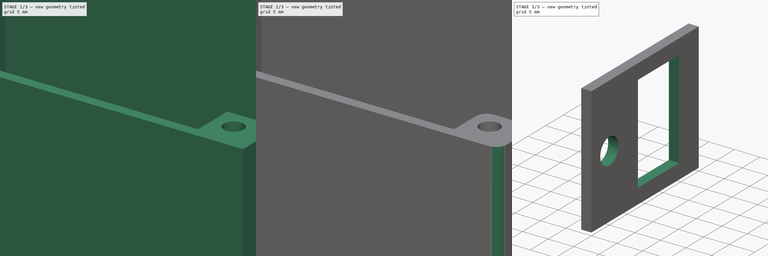
[diagram: build sequence overview — one tinted view per stage of 3, left to right]
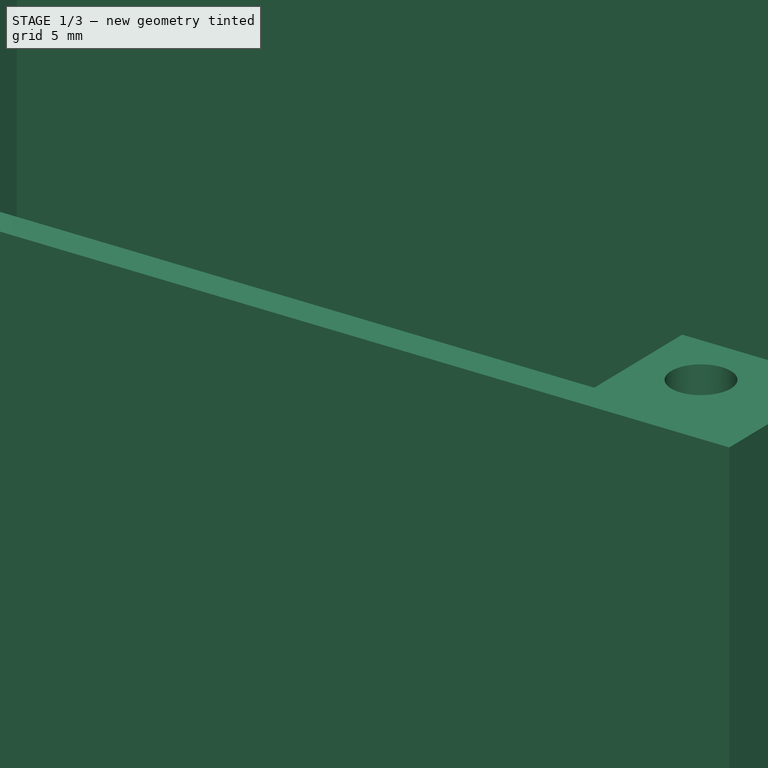
[diagram: stage 1 of 3 — iso view after this stage's code; geometry added in this stage tinted green]
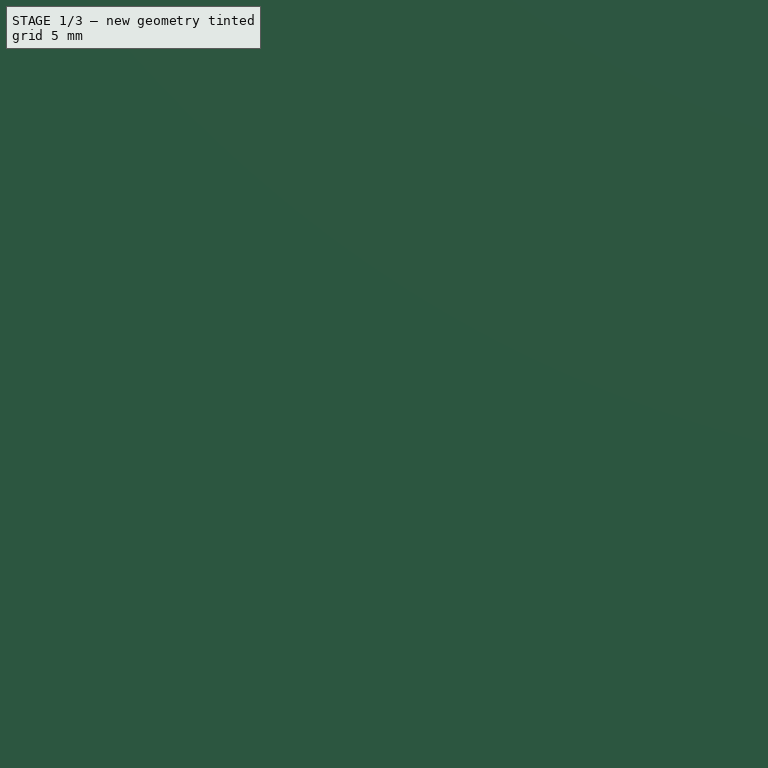
[diagram: stage 1 of 3 — front view after this stage's code; geometry added in this stage tinted green]
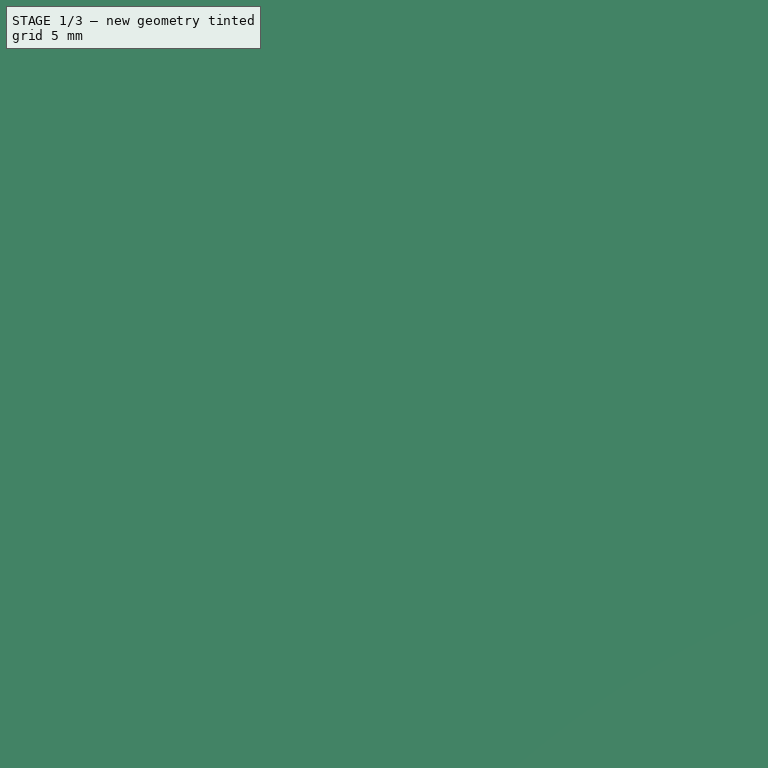
[diagram: stage 1 of 3 — top view after this stage's code; geometry added in this stage tinted green]
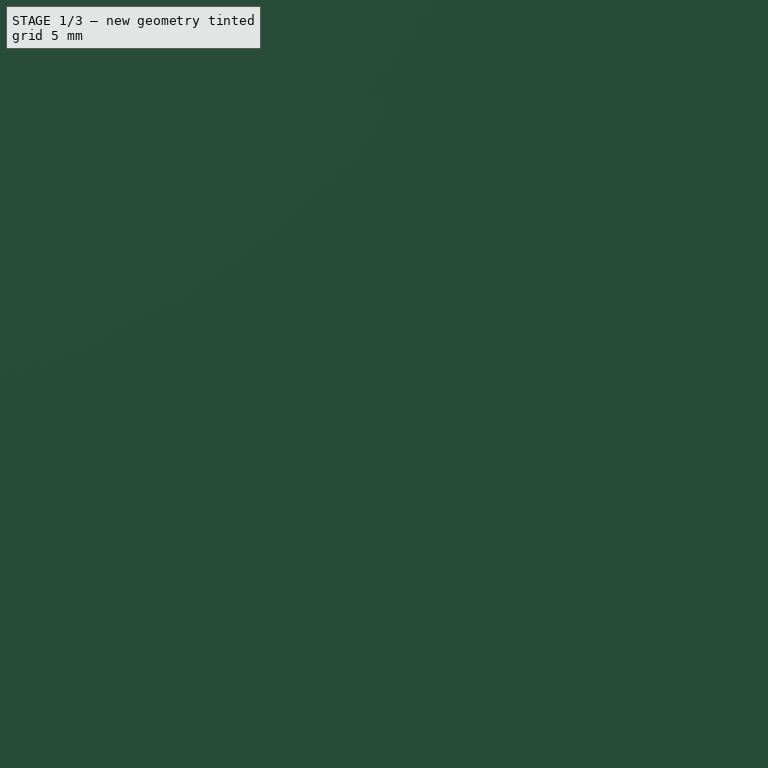
[diagram: stage 1 of 3 — right view after this stage's code; geometry added in this stage tinted green]
FCSTD DOCUMENT  (FreeCAD 0.18R16146 (Git))
Label: virtual_wall_fc-tests
License: All rights reserved
LicenseURL: http://en.wikipedia.org/wiki/All_rights_reserved
objects: Sketcher::SketchObject×4, PartDesign::Pocket×3, PartDesign::Fillet×2, PartDesign::Pad×1, PartDesign::Body×1, Part::Box×1, Part::MultiCommon×1
note: 17 computed .brp shape members not serialized (recipe doc carries the construction recipe); baked Part::Feature solids carry a one-line shape summary decoded from their .brp

FEATURE [Sketcher::SketchObject] Sketch
  MapMode = 5
  Support = -> [XY_Plane]
  sketch-geometry (4):
    g0: LineSegment StartX=0 StartY=0 StartZ=0 EndX=110 EndY=0 EndZ=0
    g1: LineSegment StartX=110 StartY=0 StartZ=0 EndX=110 EndY=80 EndZ=0
    g2: LineSegment StartX=110 StartY=80 StartZ=0 EndX=0 EndY=80 EndZ=0
    g3: LineSegment StartX=0 StartY=80 StartZ=0 EndX=0 EndY=0 EndZ=0
  constraints (11):
    c: Coincident(g0,g1)
    c: Coincident(g1,g2)
    c: Coincident(g2,g3)
    c: Coincident(g3,g0)
    c: Horizontal(g0)
    c: Horizontal(g2)
    c: Vertical(g1)
    c: Vertical(g3)
    c: Coincident(g0,g-1)
    c: DistanceX(g2,g2) = 110
    c: DistanceY(g1,g1) = 80
FEATURE [PartDesign::Pad] Pad
  Length = 50
  Length2 = 100
  Profile = -> Sketch
  Type = 0
FEATURE [Sketcher::SketchObject] Sketch001
  MapMode = 5
  Placement = pos=(0,0,50) rot=(0,0,1;0rad)
  Support = -> [Pad]
  sketch-geometry (17):
    g0: LineSegment StartX=2 StartY=10 StartZ=0 EndX=10 EndY=10 EndZ=0
    g1: LineSegment StartX=10 StartY=10 StartZ=0 EndX=10 EndY=2 EndZ=0
    g2: LineSegment StartX=10 StartY=2 StartZ=0 EndX=100 EndY=2 EndZ=0
    g3: LineSegment StartX=100 StartY=2 StartZ=0 EndX=100 EndY=10 EndZ=0
    g4: LineSegment StartX=100 StartY=10 StartZ=0 EndX=108 EndY=10 EndZ=0
    g5: LineSegment StartX=108 StartY=10 StartZ=0 EndX=108 EndY=70 EndZ=0
    g6: LineSegment StartX=108 StartY=70 StartZ=0 EndX=100 EndY=70 EndZ=0
    g7: LineSegment StartX=100 StartY=70 StartZ=0 EndX=100 EndY=78 EndZ=0
    g8: LineSegment StartX=100 StartY=78 StartZ=0 EndX=10 EndY=78 EndZ=0
    g9: LineSegment StartX=10 StartY=78 StartZ=0 EndX=10 EndY=70 EndZ=0
    g10: LineSegment StartX=10 StartY=70 StartZ=0 EndX=2 EndY=70 EndZ=0
    g11: LineSegment StartX=2 StartY=70 StartZ=0 EndX=2 EndY=10 EndZ=0
    g12: GeomPoint X=0 Y=0 Z=0
    g13: Circle CenterX=6 CenterY=74 CenterZ=0 NormalX=0 NormalY=0 NormalZ=1 AngleXU=0 Radius=1.9
    g14: Circle CenterX=104 CenterY=74 CenterZ=0 NormalX=0 NormalY=0 NormalZ=1 AngleXU=0 Radius=1.9
    g15: Circle CenterX=104 CenterY=6 CenterZ=0 NormalX=0 NormalY=0 NormalZ=1 AngleXU=0 Radius=1.9
    g16: Circle CenterX=6 CenterY=6 CenterZ=0 NormalX=0 NormalY=0 NormalZ=1 AngleXU=0 Radius=1.9
  constraints (49):
    c: Horizontal(g0)
    c: Coincident(g0,g1)
    c: Vertical(g1)
    c: Coincident(g1,g2)
    c: Horizontal(g2)
    c: Coincident(g2,g3)
    c: Coincident(g3,g4)
    c: Horizontal(g4)
    c: Coincident(g4,g5)
    c: Vertical(g5)
    c: Coincident(g5,g6)
    c: Horizontal(g6)
    c: Coincident(g6,g7)
    c: Coincident(g7,g8)
    c: Horizontal(g8)
    c: Coincident(g8,g9)
    c: Coincident(g9,g10)
    c: Coincident(g10,g11)
    c: Coincident(g11,g0)
    c: Vertical(g11)
    c: Vertical(g9)
    c: Vertical(g7)
    c: Vertical(g3)
    c: Horizontal(g10)
    c: DistanceX(g-1,g0) = 2
    c: DistanceY(g-1,g1) = 2
    c: DistanceX(g0,g0) = 8
    c: DistanceY(g1,g1) = 8
    c: DistanceX(g10,g10) = 8
    c: DistanceY(g9,g9) = 8
    c: Coincident(g12,g-1)
    c: DistanceY(g11,g11) = 60
    c: DistanceX(g8,g7) = 90
    c: DistanceY(g7,g7) = 8
    c: DistanceX(g6,g6) = 8
    c: DistanceY(g5,g5) = 60
    c: DistanceX(g4,g4) = 8
    c: DistanceX(g13,g8) = 4
    c: DistanceY(g9,g13) = 4
    c: Radius(g13) = 1.9
    c: DistanceX(g6,g14) = 4
    c: DistanceY(g6,g14) = 4
    c: Radius(g14) = 1.9
    c: DistanceX(g15,g4) = 4
    c: DistanceY(g2,g15) = 4
    c: Radius(g15) = 1.9
    c: DistanceX(g16,g1) = 4
    c: DistanceY(g16,g0) = 4
    c: Radius(g16) = 1.9
FEATURE [PartDesign::Pocket] Pocket
  BaseFeature = -> Pad
  Length = 48
  Length2 = 100
  Profile = -> Sketch001
  Type = 0
FEATURE [PartDesign::Body] Body
  Group = -> [Sketch,Pad,Sketch001,Pocket,Fillet,Fillet001,Sketch002,Pocket001,Sketch003,Pocket002]
  Origin = -> Origin
  Tip = -> Pocket002
FEATURE [Part::Box] Box  label="Cube"
  AttacherType = Attacher::AttachEngine3D
  Height = 25
  Length = 20
  Placement = pos=(100,10,15) rot=(0,0,1;0rad)
  Width = 30
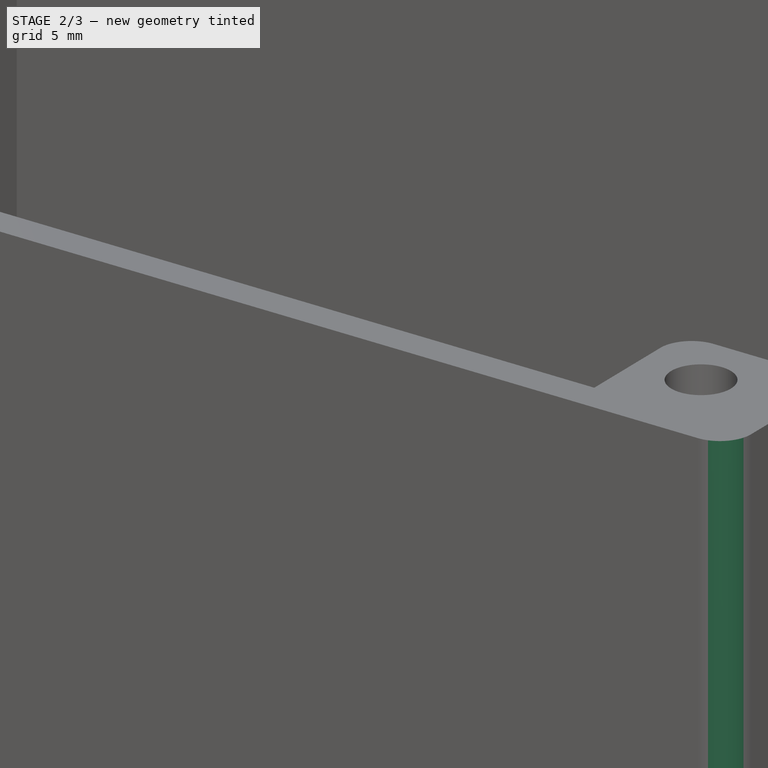
[diagram: stage 2 of 3 — iso view after this stage's code; geometry added in this stage tinted green]
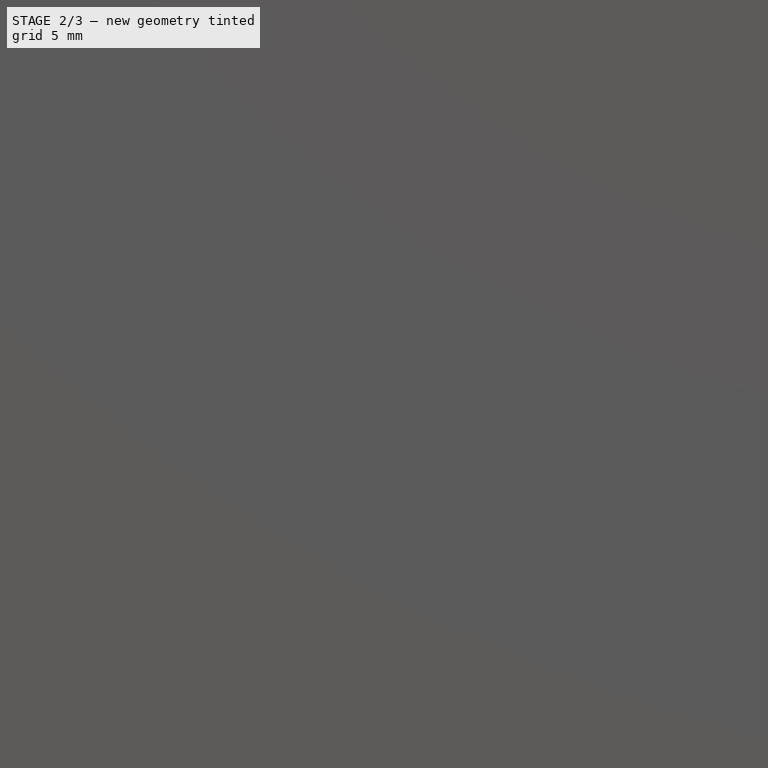
[diagram: stage 2 of 3 — front view after this stage's code; geometry added in this stage tinted green]
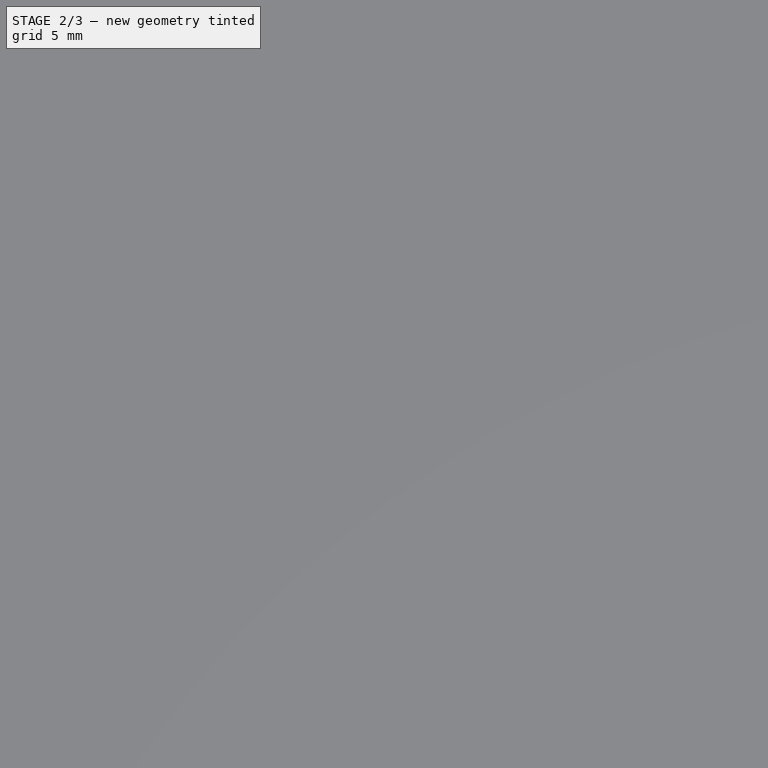
[diagram: stage 2 of 3 — top view after this stage's code; geometry added in this stage tinted green]
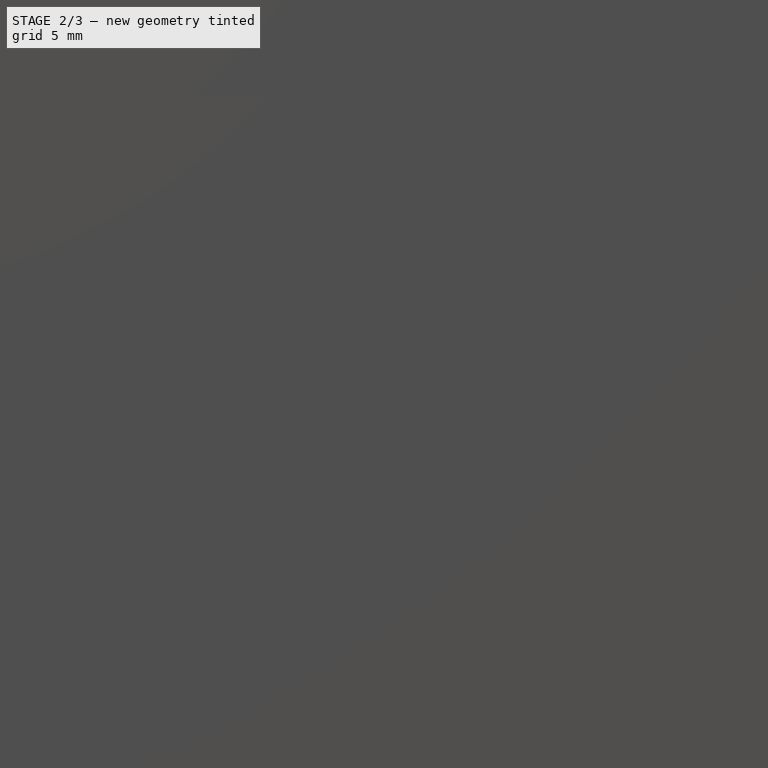
[diagram: stage 2 of 3 — right view after this stage's code; geometry added in this stage tinted green]
FEATURE [PartDesign::Fillet] Fillet
  Base = -> Pocket [Edge5,Edge6,Edge1,Edge3,Edge2,Edge8,Edge9,Edge11]
  BaseFeature = -> Pocket
  Radius = 2
FEATURE [PartDesign::Fillet] Fillet001
  Base = -> Fillet [Edge53,Edge59,Edge65,Edge47]
  BaseFeature = -> Fillet
  Radius = 2
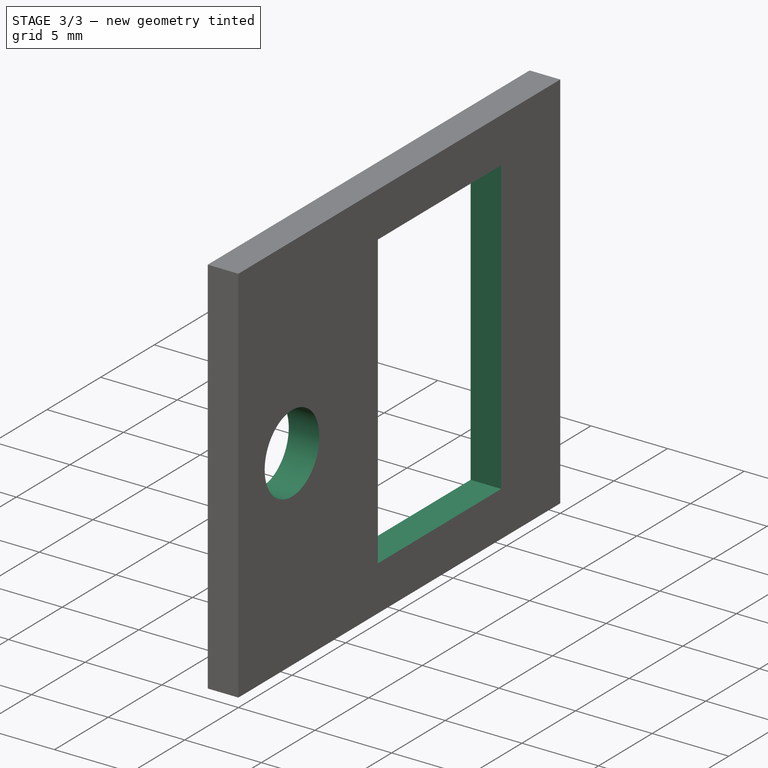
[diagram: stage 3 of 3 — iso view after this stage's code; geometry added in this stage tinted green]
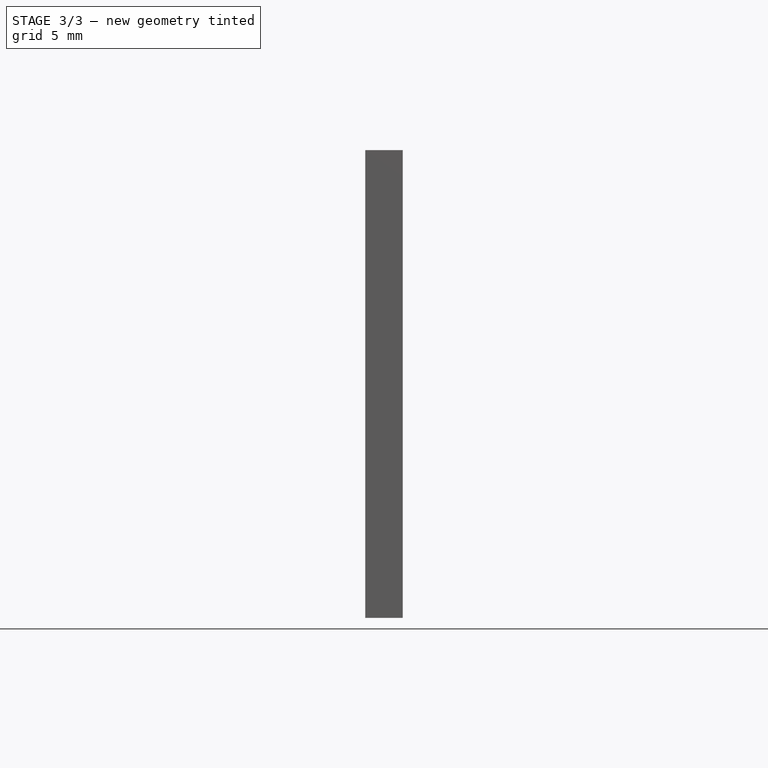
[diagram: stage 3 of 3 — front view after this stage's code; geometry added in this stage tinted green]
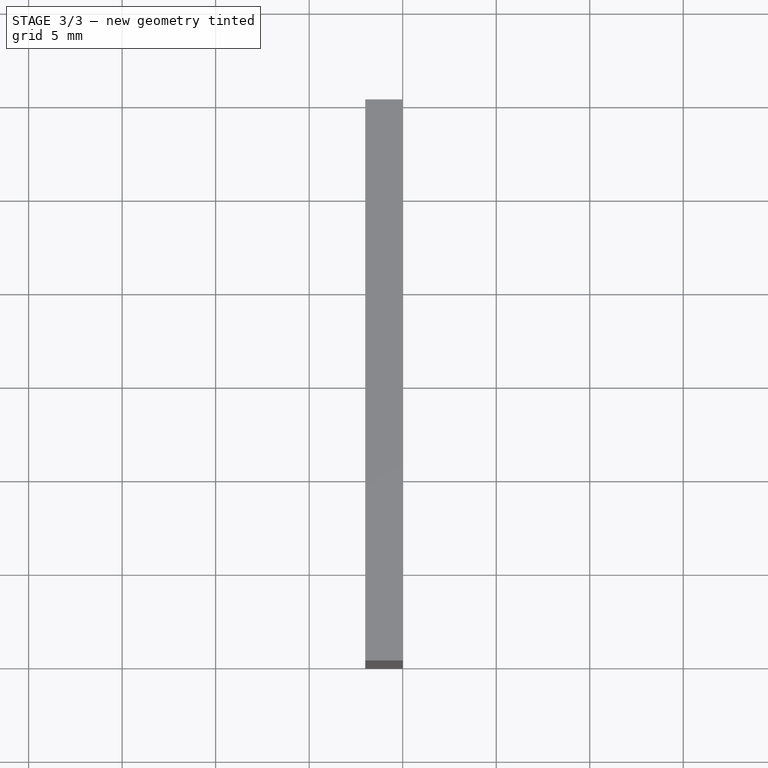
[diagram: stage 3 of 3 — top view after this stage's code; geometry added in this stage tinted green]
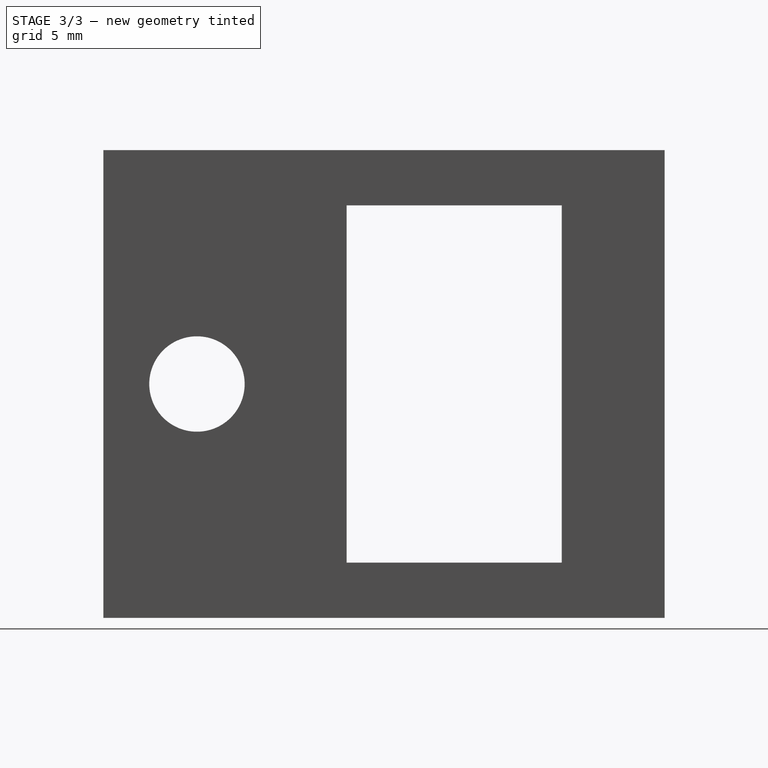
[diagram: stage 3 of 3 — right view after this stage's code; geometry added in this stage tinted green]
FEATURE [Sketcher::SketchObject] Sketch002
  MapMode = 5
  Placement = pos=(110,0,0) rot=(0.57735,0.57735,0.57735;2.0944rad)
  Support = -> [Fillet001]
  sketch-geometry (5):
    g0: LineSegment StartX=23 StartY=17.95 StartZ=0 EndX=34.5 EndY=17.95 EndZ=0
    g1: LineSegment StartX=34.5 StartY=17.95 StartZ=0 EndX=34.5 EndY=37.05 EndZ=0
    g2: LineSegment StartX=34.5 StartY=37.05 StartZ=0 EndX=23 EndY=37.05 EndZ=0
    g3: LineSegment StartX=23 StartY=37.05 StartZ=0 EndX=23 EndY=17.95 EndZ=0
    g4: Circle CenterX=15 CenterY=27.5 CenterZ=0 NormalX=0 NormalY=0 NormalZ=1 AngleXU=0 Radius=2.55
  constraints (15):
    c: Coincident(g0,g1)
    c: Coincident(g1,g2)
    c: Coincident(g2,g3)
    c: Coincident(g3,g0)
    c: Horizontal(g0)
    c: Horizontal(g2)
    c: Vertical(g1)
    c: Vertical(g3)
    c: DistanceX(g2,g2) = 11.5
    c: DistanceY(g3,g3) = 19.1
    c: DistanceY(g-1,g0) = 17.95
    c: DistanceX(g-1,g0) = 23
    c: Radius(g4) = 2.55
    c: DistanceX(g-1,g4) = 15
    c: DistanceY(g-1,g4) = 27.5
FEATURE [PartDesign::Pocket] Pocket001
  BaseFeature = -> Fillet001
  Length = 5
  Length2 = 100
  Profile = -> Sketch002
  Type = 0
FEATURE [Sketcher::SketchObject] Sketch003
  MapMode = 5
  Placement = pos=(0,0,0) rot=(1,0,0;1.5708rad)
  Support = -> [Pocket001]
  sketch-geometry (1):
    g0: Circle CenterX=95 CenterY=27.5 CenterZ=0 NormalX=0 NormalY=0 NormalZ=1 AngleXU=0 Radius=2.55
  constraints (3):
    c: Radius(g0) = 2.55
    c: DistanceX(g-1,g0) = 95
    c: DistanceY(g-1,g0) = 27.5
FEATURE [PartDesign::Pocket] Pocket002
  BaseFeature = -> Pocket001
  Length = 5
  Length2 = 100
  Profile = -> Sketch003
  Type = 0
FEATURE [Part::MultiCommon] Common
  Shapes = -> [Pocket002,Box]
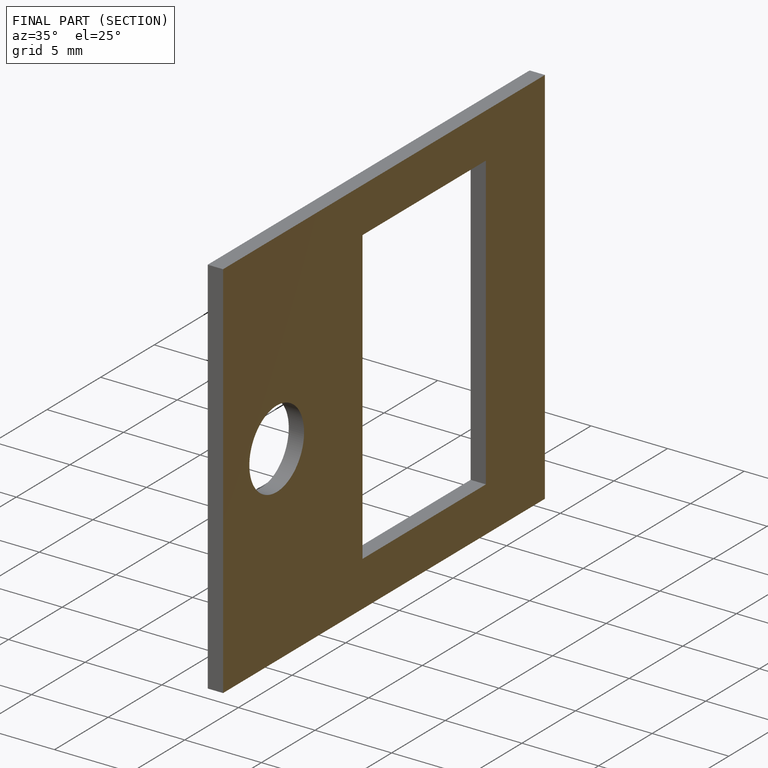
[diagram: finished part — half-section view (interior)]
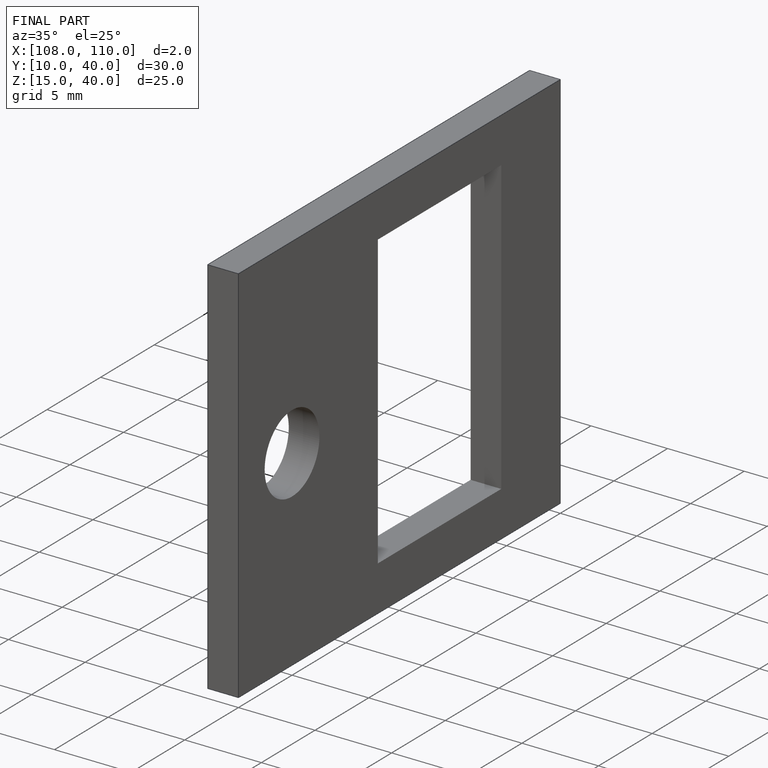
[diagram: finished part — iso view with bounding-box wireframe]
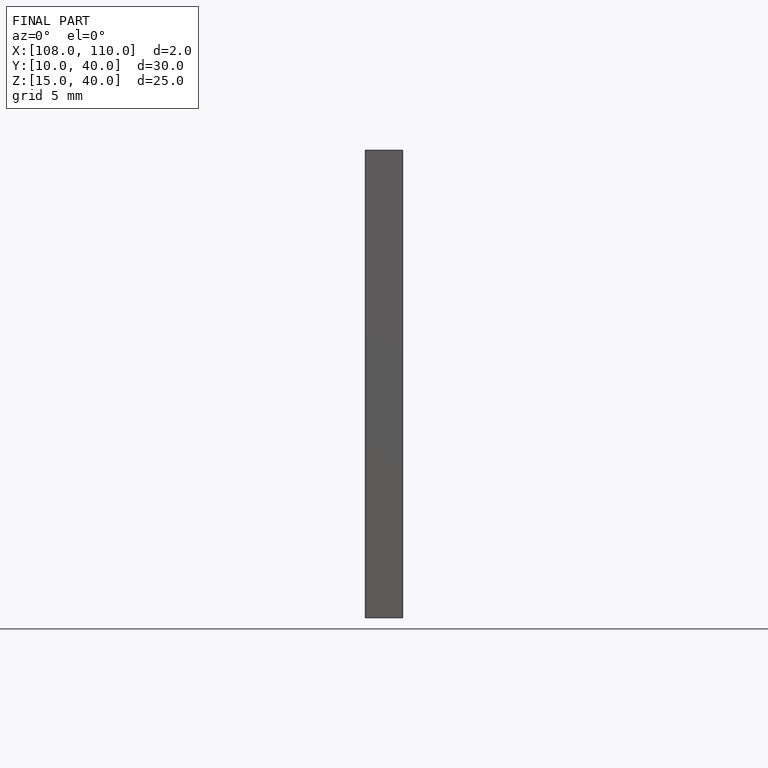
[diagram: finished part — front view with bounding-box wireframe]
